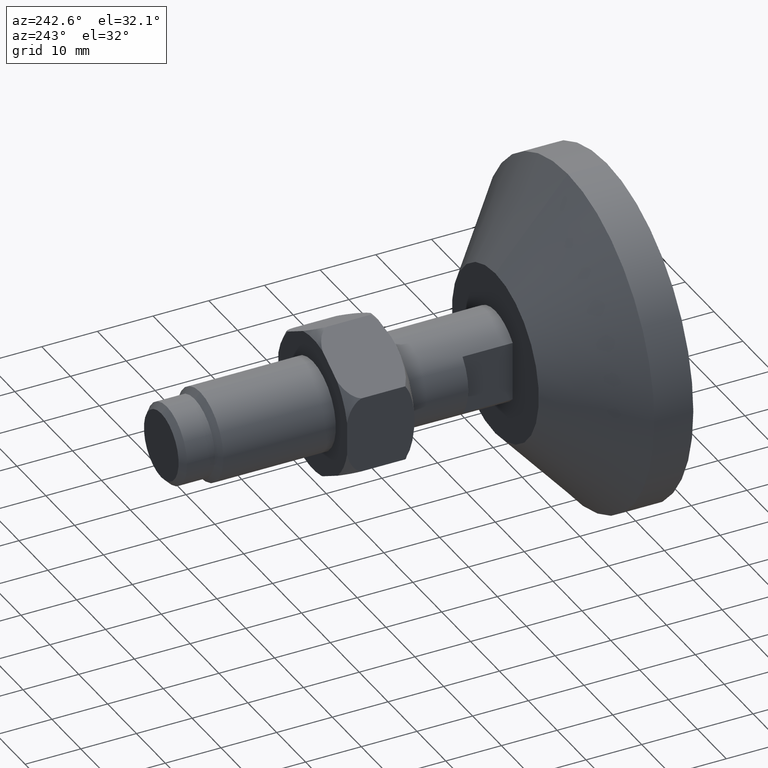
[diagram: clean part render]
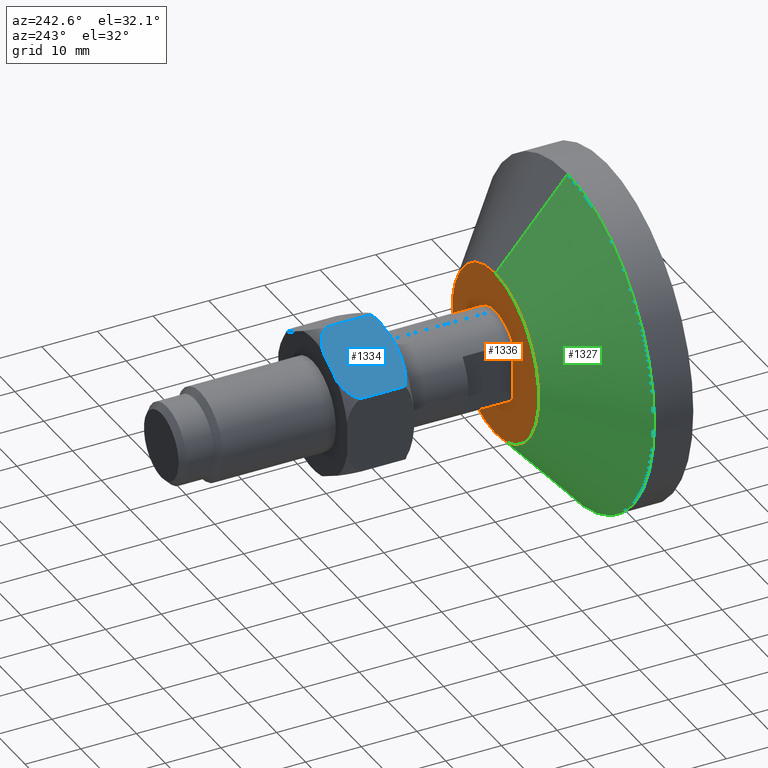
[diagram: same view with three faces highlighted in distinct colors, each labeled with its STEP entity id]
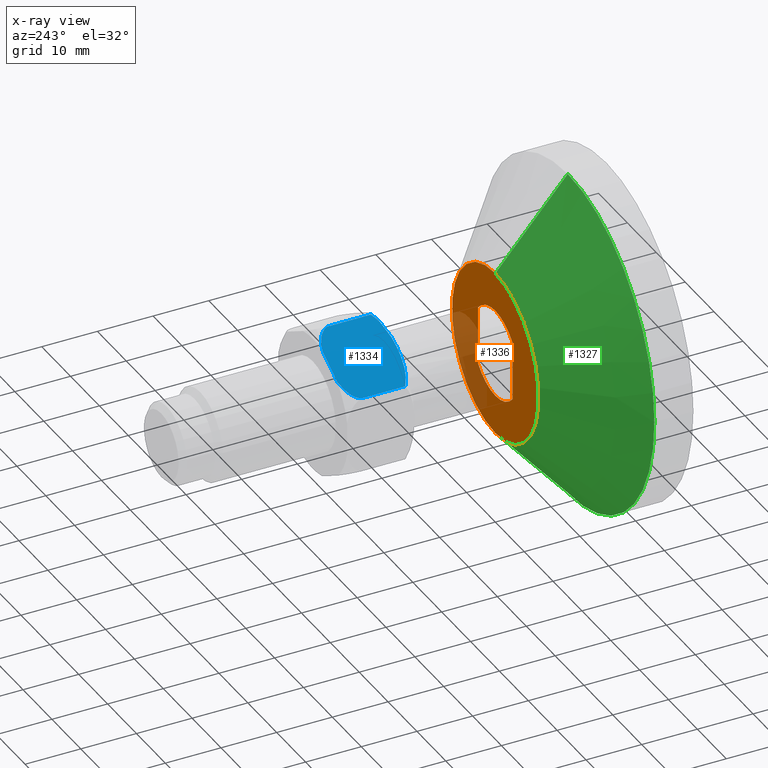
[diagram: x-ray of the same camera — body ghosted, the three highlighted faces saturated]
A machine part, auxiliary view with three faces highlighted in distinct colors.
The next image is the same camera in x-ray (body ghosted, the three faces saturated) — at least one of them is partly hidden behind the body in this view.
Their STEP definitions:

[orange] entity #1336 — the highlighted planar face has unit normal (0, 1, 0).
#22 = EDGE_CURVE ( 'NONE', #1129, #1158, #1452, .T. ) ;
#24 = EDGE_CURVE ( 'NONE', #1131, #1130, #1436, .T. ) ;
#37 = EDGE_CURVE ( 'NONE', #1158, #1160, #1526, .T. ) ;
#39 = EDGE_CURVE ( 'NONE', #1143, #1128, #825, .T. ) ;
#40 = EDGE_CURVE ( 'NONE', #1127, #1128, #58, .T. ) ;
#44 = EDGE_CURVE ( 'NONE', #1160, #1127, #501, .T. ) ;
#58 = CIRCLE ( 'NONE', #682, 8.000000000000000000 ) ;
#67 = ORIENTED_EDGE ( 'NONE', *, *, #44, .F. ) ;
#73 = ORIENTED_EDGE ( 'NONE', *, *, #1021, .F. ) ;
#74 = ORIENTED_EDGE ( 'NONE', *, *, #24, .T. ) ;
#77 = ORIENTED_EDGE ( 'NONE', *, *, #40, .F. ) ;
#92 = ORIENTED_EDGE ( 'NONE', *, *, #39, .T. ) ;
#96 = ORIENTED_EDGE ( 'NONE', *, *, #1465, .T. ) ;
#105 = ORIENTED_EDGE ( 'NONE', *, *, #22, .F. ) ;
#110 = ORIENTED_EDGE ( 'NONE', *, *, #37, .F. ) ;
#260 = PLANE ( 'NONE',  #1480 ) ;
#261 = CARTESIAN_POINT ( 'NONE',  ( 0.0000000000000000000, 20.00000000000000000, 0.0000000000000000000 ) ) ;
#262 = DIRECTION ( 'NONE',  ( 0.0000000000000000000, 1.000000000000000000, 0.0000000000000000000 ) ) ;
#263 = DIRECTION ( 'NONE',  ( 0.0000000000000000000, -0.0000000000000000000, 1.000000000000000000 ) ) ;
#501 = CIRCLE ( 'NONE', #726, 8.000000000000000000 ) ;
#573 = CIRCLE ( 'NONE', #673, 8.000000000000000000 ) ;
#600 = FACE_BOUND ( 'NONE', #1445, .T. ) ;
#601 = FACE_OUTER_BOUND ( 'NONE', #1434, .T. ) ;
#629 = CIRCLE ( 'NONE', #1493, 15.04521070612684500 ) ;
#673 = AXIS2_PLACEMENT_3D ( 'NONE', #1419, #1420, #1421 ) ;
#676 = AXIS2_PLACEMENT_3D ( 'NONE', #1207, #1208, #1209 ) ;
#679 = AXIS2_PLACEMENT_3D ( 'NONE', #1202, #1203, #1204 ) ;
#682 = AXIS2_PLACEMENT_3D ( 'NONE', #1267, #1270, #1275 ) ;
#726 = AXIS2_PLACEMENT_3D ( 'NONE', #838, #836, #827 ) ;
#825 = LINE ( 'NONE', #1274, #841 ) ;
#827 = DIRECTION ( 'NONE',  ( 0.0000000000000000000, 0.0000000000000000000, 1.000000000000000000 ) ) ;
#836 = DIRECTION ( 'NONE',  ( 0.0000000000000000000, 1.000000000000000000, 0.0000000000000000000 ) ) ;
#838 = CARTESIAN_POINT ( 'NONE',  ( 0.0000000000000000000, 20.00000000000000000, 0.0000000000000000000 ) ) ;
#841 = VECTOR ( 'NONE', #1283, 1000.000000000000000 ) ;
#975 = CARTESIAN_POINT ( 'NONE',  ( 9.797174393178825700E-016, 20.00000000000000000, 8.000000000000000000 ) ) ;
#976 = CARTESIAN_POINT ( 'NONE',  ( 6.000000000000000000, 20.00000000000000000, 5.291502622129181400 ) ) ;
#977 = CARTESIAN_POINT ( 'NONE',  ( 0.0000000000000000000, 20.00000000000000000, -8.000000000000000000 ) ) ;
#978 = CARTESIAN_POINT ( 'NONE',  ( -2.758223655408815900E-015, 20.00000000000000000, -15.04521070612684500 ) ) ;
#979 = CARTESIAN_POINT ( 'NONE',  ( 0.0000000000000000000, 20.00000000000000000, 15.04521070612684500 ) ) ;
#991 = CARTESIAN_POINT ( 'NONE',  ( 6.000000000000000000, 20.00000000000000000, -5.291502622129181400 ) ) ;
#1006 = CARTESIAN_POINT ( 'NONE',  ( -6.000000000000001800, 20.00000000000000000, -5.291502622129178800 ) ) ;
#1008 = CARTESIAN_POINT ( 'NONE',  ( -6.000000000000001800, 20.00000000000000400, 5.291502622129178800 ) ) ;
#1021 = EDGE_CURVE ( 'NONE', #1143, #1129, #573, .T. ) ;
#1072 = CARTESIAN_POINT ( 'NONE',  ( 0.0000000000000000000, 20.00000000000000000, 0.0000000000000000000 ) ) ;
#1073 = DIRECTION ( 'NONE',  ( 0.0000000000000000000, 1.000000000000000000, 0.0000000000000000000 ) ) ;
#1074 = DIRECTION ( 'NONE',  ( 0.0000000000000000000, 0.0000000000000000000, 1.000000000000000000 ) ) ;
#1127 = VERTEX_POINT ( 'NONE', #975 ) ;
#1128 = VERTEX_POINT ( 'NONE', #976 ) ;
#1129 = VERTEX_POINT ( 'NONE', #977 ) ;
#1130 = VERTEX_POINT ( 'NONE', #978 ) ;
#1131 = VERTEX_POINT ( 'NONE', #979 ) ;
#1143 = VERTEX_POINT ( 'NONE', #991 ) ;
#1158 = VERTEX_POINT ( 'NONE', #1006 ) ;
#1160 = VERTEX_POINT ( 'NONE', #1008 ) ;
#1202 = CARTESIAN_POINT ( 'NONE',  ( 0.0000000000000000000, 20.00000000000000000, 0.0000000000000000000 ) ) ;
#1203 = DIRECTION ( 'NONE',  ( 0.0000000000000000000, 1.000000000000000000, 0.0000000000000000000 ) ) ;
#1204 = DIRECTION ( 'NONE',  ( 0.0000000000000000000, 0.0000000000000000000, 1.000000000000000000 ) ) ;
#1207 = CARTESIAN_POINT ( 'NONE',  ( 0.0000000000000000000, 20.00000000000000000, 0.0000000000000000000 ) ) ;
#1208 = DIRECTION ( 'NONE',  ( 0.0000000000000000000, 1.000000000000000000, 0.0000000000000000000 ) ) ;
#1209 = DIRECTION ( 'NONE',  ( 0.0000000000000000000, 0.0000000000000000000, 1.000000000000000000 ) ) ;
#1267 = CARTESIAN_POINT ( 'NONE',  ( 0.0000000000000000000, 20.00000000000000000, 0.0000000000000000000 ) ) ;
#1270 = DIRECTION ( 'NONE',  ( 0.0000000000000000000, 1.000000000000000000, 0.0000000000000000000 ) ) ;
#1274 = CARTESIAN_POINT ( 'NONE',  ( 6.000000000000000000, 20.00000000000000000, -15.00000000000000000 ) ) ;
#1275 = DIRECTION ( 'NONE',  ( 0.0000000000000000000, 0.0000000000000000000, 1.000000000000000000 ) ) ;
#1278 = DIRECTION ( 'NONE',  ( -0.0000000000000000000, -0.0000000000000000000, 1.000000000000000000 ) ) ;
#1280 = CARTESIAN_POINT ( 'NONE',  ( -6.000000000000001800, 20.00000000000000000, -15.00000000000000000 ) ) ;
#1283 = DIRECTION ( 'NONE',  ( -0.0000000000000000000, -0.0000000000000000000, 1.000000000000000000 ) ) ;
#1336 = ADVANCED_FACE ( 'NONE', ( #600, #601 ), #260, .T. ) ;
#1419 = CARTESIAN_POINT ( 'NONE',  ( 0.0000000000000000000, 20.00000000000000000, 0.0000000000000000000 ) ) ;
#1420 = DIRECTION ( 'NONE',  ( 0.0000000000000000000, 1.000000000000000000, 0.0000000000000000000 ) ) ;
#1421 = DIRECTION ( 'NONE',  ( 0.0000000000000000000, 0.0000000000000000000, 1.000000000000000000 ) ) ;
#1434 = EDGE_LOOP ( 'NONE', ( #74, #96 ) ) ;
#1436 = CIRCLE ( 'NONE', #676, 15.04521070612684500 ) ;
#1445 = EDGE_LOOP ( 'NONE', ( #73, #92, #77, #67, #110, #105 ) ) ;
#1452 = CIRCLE ( 'NONE', #679, 8.000000000000000000 ) ;
#1465 = EDGE_CURVE ( 'NONE', #1130, #1131, #629, .T. ) ;
#1480 = AXIS2_PLACEMENT_3D ( 'NONE', #261, #262, #263 ) ;
#1493 = AXIS2_PLACEMENT_3D ( 'NONE', #1072, #1073, #1074 ) ;
#1513 = VECTOR ( 'NONE', #1278, 1000.000000000000000 ) ;
#1526 = LINE ( 'NONE', #1280, #1513 ) ;

[blue] entity #1334 — the highlighted planar face has unit normal (0.5, 0, -0.866).
#16 = EDGE_CURVE ( 'NONE', #1116, #1107, #1446, .T. ) ;
#17 = EDGE_CURVE ( 'NONE', #1114, #1107, #874, .T. ) ;
#18 = EDGE_CURVE ( 'NONE', #1114, #1111, #1440, .T. ) ;
#123 = CARTESIAN_POINT ( 'NONE',  ( -6.471409395423457900, 40.70385899300910600, 10.00466645022909900 ) ) ;
#252 = PLANE ( 'NONE',  #1478 ) ;
#253 = CARTESIAN_POINT ( 'NONE',  ( -11.89999999999999700, 52.79999999999999700, 6.870468203356557200 ) ) ;
#254 = DIRECTION ( 'NONE',  ( 0.5000000000000003300, 0.0000000000000000000, -0.8660254037844386000 ) ) ;
#255 = DIRECTION ( 'NONE',  ( -0.8660254037844384900, 0.0000000000000000000, -0.5000000000000002200 ) ) ;
#311 = CARTESIAN_POINT ( 'NONE',  ( -11.89999999999999700, 42.35453000970881700, 6.870468203356557200 ) ) ;
#312 = CARTESIAN_POINT ( 'NONE',  ( -11.47033084900914600, 42.00570290842164000, 7.118537803343609300 ) ) ;
#319 = CARTESIAN_POINT ( 'NONE',  ( -4.916127402294508300, 40.72819692485708000, 10.90260892762787600 ) ) ;
#320 = CARTESIAN_POINT ( 'NONE',  ( -3.887471983805165500, 40.83308087438815200, 11.49650341039605900 ) ) ;
#321 = CARTESIAN_POINT ( 'NONE',  ( -3.376772570704735400, 40.91328509604832700, 11.79135585402458900 ) ) ;
#322 = CARTESIAN_POINT ( 'NONE',  ( -2.618322954043055300, 41.09173973558649400, 12.22924694437097400 ) ) ;
#323 = CARTESIAN_POINT ( 'NONE',  ( -2.366788724979581400, 41.16103632883942300, 12.37447029923117500 ) ) ;
#324 = CARTESIAN_POINT ( 'NONE',  ( -1.866900773211252600, 41.32396545686370400, 12.66308074274927400 ) ) ;
#325 = CARTESIAN_POINT ( 'NONE',  ( -1.618035863816474700, 41.41794225307423700, 12.80676296518019600 ) ) ;
#326 = CARTESIAN_POINT ( 'NONE',  ( -0.8913737469897219400, 41.73957701619501400, 13.22630153394002200 ) ) ;
#327 = CARTESIAN_POINT ( 'NONE',  ( -0.4287694987852925200, 42.00643329148568500, 13.49338622116911200 ) ) ;
#328 = CARTESIAN_POINT ( 'NONE',  ( -6.047775764469060100E-015, 42.35453000970881000, 13.74093640671310000 ) ) ;
#331 = CARTESIAN_POINT ( 'NONE',  ( -11.89999999999999700, 52.79999999999999700, 6.870468203356557200 ) ) ;
#332 = DIRECTION ( 'NONE',  ( -0.0000000000000000000, -1.000000000000000000, -0.0000000000000000000 ) ) ;
#377 = CARTESIAN_POINT ( 'NONE',  ( -8.540620882409705000, 52.79999999999999700, 8.810006641207328600 ) ) ;
#378 = CARTESIAN_POINT ( 'NONE',  ( -8.882436639350880000, 52.71647872135522300, 8.612659221924079800 ) ) ;
#379 = CARTESIAN_POINT ( 'NONE',  ( -9.218031119203290700, 52.61211934173839900, 8.418903658642735300 ) ) ;
#380 = CARTESIAN_POINT ( 'NONE',  ( -9.708700194035424500, 52.41296590933853800, 8.135615736205380700 ) ) ;
#381 = CARTESIAN_POINT ( 'NONE',  ( -9.870118723610987700, 52.33942079753369100, 8.042420704702738700 ) ) ;
#382 = CARTESIAN_POINT ( 'NONE',  ( -10.18776195449198200, 52.17493390176487400, 7.859029299847335900 ) ) ;
#383 = CARTESIAN_POINT ( 'NONE',  ( -10.34475254403405100, 52.08347175356780000, 7.768390740714980100 ) ) ;
#384 = CARTESIAN_POINT ( 'NONE',  ( -10.64743549393479300, 51.88192805968030500, 7.593636658110674500 ) ) ;
#385 = CARTESIAN_POINT ( 'NONE',  ( -10.79322358349715400, 51.77195194879805500, 7.509465865357205100 ) ) ;
#386 = CARTESIAN_POINT ( 'NONE',  ( -11.07135099307152800, 51.52970953538640200, 7.348888930570425700 ) ) ;
#387 = CARTESIAN_POINT ( 'NONE',  ( -11.20466882107739300, 51.39630131554728400, 7.271917846683462200 ) ) ;
#388 = CARTESIAN_POINT ( 'NONE',  ( -11.44880241081039600, 51.10741893476112100, 7.130967252932887100 ) ) ;
#389 = CARTESIAN_POINT ( 'NONE',  ( -11.55946446730966500, 50.95256537290995200, 7.067076484823954500 ) ) ;
#390 = CARTESIAN_POINT ( 'NONE',  ( -11.75332038905646900, 50.61778016311884400, 6.955153716219431500 ) ) ;
#391 = CARTESIAN_POINT ( 'NONE',  ( -11.83662220062920800, 50.43679063166502600, 6.907059392883925700 ) ) ;
#392 = CARTESIAN_POINT ( 'NONE',  ( -11.89999999999999300, 50.24676193515615100, 6.870468203356561600 ) ) ;
#520 = LINE ( 'NONE', #331, #521 ) ;
#521 = VECTOR ( 'NONE', #332, 1000.000000000000000 ) ;
#597 = FACE_OUTER_BOUND ( 'NONE', #689, .T. ) ;
#669 = CARTESIAN_POINT ( 'NONE',  ( -10.04424930671583900, 41.31253187079018100, 7.941886365673001400 ) ) ;
#670 = CARTESIAN_POINT ( 'NONE',  ( -11.00851914028844700, 41.73972367200169500, 7.385164917688424400 ) ) ;
#674 = CARTESIAN_POINT ( 'NONE',  ( -6.986954617257921100, 40.72844365769901700, 9.707016277623491600 ) ) ;
#689 = EDGE_LOOP ( 'NONE', ( #1318, #1317, #1322, #1314, #1319, #1301 ) ) ;
#822 = CARTESIAN_POINT ( 'NONE',  ( -9.537781358528889100, 41.15209842145743800, 8.234295771894650800 ) ) ;
#824 = CARTESIAN_POINT ( 'NONE',  ( -8.523653860106216800, 40.91328556682851300, 8.819802556101581800 ) ) ;
#849 = EDGE_CURVE ( 'NONE', #1110, #1111, #881, .T. ) ;
#851 = EDGE_CURVE ( 'NONE', #1109, #1110, #520, .T. ) ;
#858 = EDGE_CURVE ( 'NONE', #1116, #1109, #884, .T. ) ;
#874 = B_SPLINE_CURVE_WITH_KNOTS ( 'NONE', 3,
 ( #1163, #1164, #1165, #1166, #1167, #1168, #1169, #1170, #1171, #1172, #1173, #1174 ),
 .UNSPECIFIED., .F., .F.,
 ( 4, 2, 2, 2, 2, 4 ),
 ( 2.354805997522815600E-017, 0.0006028800655106791000, 0.001205760131021334800, 0.002411520262042645700, 0.003617280393063956900, 0.004823040524085268000 ),
 .UNSPECIFIED. ) ;
#881 = B_SPLINE_CURVE_WITH_KNOTS ( 'NONE', 3,
 ( #311, #312, #670, #669, #822, #824, #1031, #674, #123, #898, #319, #320, #321, #322, #323, #324, #325, #326, #327, #328 ),
 .UNSPECIFIED., .F., .F.,
 ( 4, 2, 2, 2, 2, 2, 2, 2, 2, 4 ),
 ( 0.0000000000000000000, 0.001786181906175428300, 0.003572363812350857900, 0.005358545718526288100, 0.007144727624701717500, 0.008930909530877146800, 0.01071709143705257800, 0.01161018239014029200, 0.01250327334322800900, 0.01428945524940343800 ),
 .UNSPECIFIED. ) ;
#884 = B_SPLINE_CURVE_WITH_KNOTS ( 'NONE', 3,
 ( #377, #378, #379, #380, #381, #382, #383, #384, #385, #386, #387, #388, #389, #390, #391, #392 ),
 .UNSPECIFIED., .F., .F.,
 ( 4, 2, 2, 2, 2, 2, 2, 4 ),
 ( 8.673617379884035500E-018, 0.001201094750445977900, 0.001801642125668963500, 0.002402189500891949300, 0.003002736876114934700, 0.003603284251337920500, 0.004203831626560905500, 0.004804379001783891700 ),
 .UNSPECIFIED. ) ;
#898 = CARTESIAN_POINT ( 'NONE',  ( -5.435942201204801100, 40.70362116646295200, 10.60249371354827000 ) ) ;
#955 = CARTESIAN_POINT ( 'NONE',  ( -3.359379117590317200, 52.79999999999999700, 11.80139796886233600 ) ) ;
#957 = CARTESIAN_POINT ( 'NONE',  ( -11.89999999999999300, 50.24676193515615100, 6.870468203356561600 ) ) ;
#958 = CARTESIAN_POINT ( 'NONE',  ( -11.89999999999999700, 42.35453000970881700, 6.870468203356557200 ) ) ;
#959 = CARTESIAN_POINT ( 'NONE',  ( -6.047775764469060100E-015, 42.35453000970881000, 13.74093640671310000 ) ) ;
#962 = CARTESIAN_POINT ( 'NONE',  ( -4.443965581537938300E-015, 50.24676193515611500, 13.74093640671310400 ) ) ;
#964 = CARTESIAN_POINT ( 'NONE',  ( -8.540620882409705000, 52.79999999999999700, 8.810006641207328600 ) ) ;
#1031 = CARTESIAN_POINT ( 'NONE',  ( -8.013072626379598200, 40.83320415965661700, 9.114586768836773000 ) ) ;
#1107 = VERTEX_POINT ( 'NONE', #955 ) ;
#1109 = VERTEX_POINT ( 'NONE', #957 ) ;
#1110 = VERTEX_POINT ( 'NONE', #958 ) ;
#1111 = VERTEX_POINT ( 'NONE', #959 ) ;
#1114 = VERTEX_POINT ( 'NONE', #962 ) ;
#1116 = VERTEX_POINT ( 'NONE', #964 ) ;
#1161 = CARTESIAN_POINT ( 'NONE',  ( -11.89999999999999700, 52.79999999999999700, 6.870468203356557200 ) ) ;
#1162 = DIRECTION ( 'NONE',  ( 0.8660254037844384900, 0.0000000000000000000, 0.5000000000000002200 ) ) ;
#1163 = CARTESIAN_POINT ( 'NONE',  ( -4.443965581537938300E-015, 50.24676193515611500, 13.74093640671310400 ) ) ;
#1164 = CARTESIAN_POINT ( 'NONE',  ( -0.06359257024216148600, 50.43743458947258800, 13.70422121916533200 ) ) ;
#1165 = CARTESIAN_POINT ( 'NONE',  ( -0.1454209478348545400, 50.61521734069539500, 13.65697758333484100 ) ) ;
#1166 = CARTESIAN_POINT ( 'NONE',  ( -0.3387271118221025800, 50.94982528426258700, 13.54537221752078600 ) ) ;
#1167 = CARTESIAN_POINT ( 'NONE',  ( -0.4515784775512165000, 51.10793985541741300, 13.48021745113867600 ) ) ;
#1168 = CARTESIAN_POINT ( 'NONE',  ( -0.8182362359179236000, 51.54159352402065500, 13.26852749564518800 ) ) ;
#1169 = CARTESIAN_POINT ( 'NONE',  ( -1.100054923503042800, 51.78037656030883100, 13.10581940050524400 ) ) ;
#1170 = CARTESIAN_POINT ( 'NONE',  ( -1.707724687314361700, 52.18500171154394700, 12.75498109879038300 ) ) ;
#1171 = CARTESIAN_POINT ( 'NONE',  ( -2.025565010116754800, 52.34555303006536100, 12.57147590286111700 ) ) ;
#1172 = CARTESIAN_POINT ( 'NONE',  ( -2.679784725270799100, 52.61137609001536900, 12.19376197420776700 ) ) ;
#1173 = CARTESIAN_POINT ( 'NONE',  ( -3.017200356088422200, 52.71639002267954100, 11.99895496892586900 ) ) ;
#1174 = CARTESIAN_POINT ( 'NONE',  ( -3.359379117590317200, 52.79999999999999700, 11.80139796886233600 ) ) ;
#1175 = CARTESIAN_POINT ( 'NONE',  ( -4.443965581537938300E-015, 52.79999999999999700, 13.74093640671310400 ) ) ;
#1176 = DIRECTION ( 'NONE',  ( -0.0000000000000000000, -1.000000000000000000, -0.0000000000000000000 ) ) ;
#1301 = ORIENTED_EDGE ( 'NONE', *, *, #858, .T. ) ;
#1314 = ORIENTED_EDGE ( 'NONE', *, *, #17, .T. ) ;
#1317 = ORIENTED_EDGE ( 'NONE', *, *, #849, .T. ) ;
#1318 = ORIENTED_EDGE ( 'NONE', *, *, #851, .T. ) ;
#1319 = ORIENTED_EDGE ( 'NONE', *, *, #16, .F. ) ;
#1322 = ORIENTED_EDGE ( 'NONE', *, *, #18, .F. ) ;
#1334 = ADVANCED_FACE ( 'NONE', ( #597 ), #252, .F. ) ;
#1433 = VECTOR ( 'NONE', #1176, 1000.000000000000000 ) ;
#1440 = LINE ( 'NONE', #1175, #1433 ) ;
#1446 = LINE ( 'NONE', #1161, #1456 ) ;
#1456 = VECTOR ( 'NONE', #1162, 1000.000000000000200 ) ;
#1478 = AXIS2_PLACEMENT_3D ( 'NONE', #253, #254, #255 ) ;

[green] entity #1327 — the highlighted conical surface has half-angle 49 deg.
#64 = ORIENTED_EDGE ( 'NONE', *, *, #1460, .T. ) ;
#65 = ORIENTED_EDGE ( 'NONE', *, *, #1463, .T. ) ;
#90 = ORIENTED_EDGE ( 'NONE', *, *, #1465, .F. ) ;
#94 = ORIENTED_EDGE ( 'NONE', *, *, #1017, .F. ) ;
#229 = CARTESIAN_POINT ( 'NONE',  ( 0.0000000000000000000, 7.000000000000000000, 0.0000000000000000000 ) ) ;
#230 = DIRECTION ( 'NONE',  ( -0.0000000000000000000, -1.000000000000000000, -0.0000000000000000000 ) ) ;
#231 = DIRECTION ( 'NONE',  ( 0.0000000000000000000, 0.0000000000000000000, 1.000000000000000000 ) ) ;
#568 = LINE ( 'NONE', #1411, #569 ) ;
#569 = VECTOR ( 'NONE', #1412, 1000.000000000000000 ) ;
#585 = FACE_OUTER_BOUND ( 'NONE', #711, .T. ) ;
#586 = CONICAL_SURFACE ( 'NONE', #1471, 30.00000000000000000, 0.8552113334772223400 ) ;
#621 = LINE ( 'NONE', #1060, #622 ) ;
#622 = VECTOR ( 'NONE', #1061, 1000.000000000000000 ) ;
#627 = CIRCLE ( 'NONE', #1492, 30.00000000000000000 ) ;
#629 = CIRCLE ( 'NONE', #1493, 15.04521070612684500 ) ;
#711 = EDGE_LOOP ( 'NONE', ( #90, #64, #65, #94 ) ) ;
#974 = CARTESIAN_POINT ( 'NONE',  ( 0.0000000000000000000, 7.000000000000000000, -30.00000000000000000 ) ) ;
#978 = CARTESIAN_POINT ( 'NONE',  ( -2.758223655408815900E-015, 20.00000000000000000, -15.04521070612684500 ) ) ;
#979 = CARTESIAN_POINT ( 'NONE',  ( 0.0000000000000000000, 20.00000000000000000, 15.04521070612684500 ) ) ;
#992 = CARTESIAN_POINT ( 'NONE',  ( 3.673940397442059200E-015, 7.000000000000000000, 30.00000000000000000 ) ) ;
#1017 = EDGE_CURVE ( 'NONE', #1131, #1144, #568, .T. ) ;
#1060 = CARTESIAN_POINT ( 'NONE',  ( -3.673940397442059200E-015, 7.000000000000000000, -30.00000000000000000 ) ) ;
#1061 = DIRECTION ( 'NONE',  ( -9.242526717056609700E-017, -0.6560590289905066100, -0.7547095802227725700 ) ) ;
#1067 = CARTESIAN_POINT ( 'NONE',  ( 0.0000000000000000000, 7.000000000000000000, 0.0000000000000000000 ) ) ;
#1068 = DIRECTION ( 'NONE',  ( 0.0000000000000000000, 1.000000000000000000, 0.0000000000000000000 ) ) ;
#1069 = DIRECTION ( 'NONE',  ( 0.0000000000000000000, 0.0000000000000000000, 1.000000000000000000 ) ) ;
#1072 = CARTESIAN_POINT ( 'NONE',  ( 0.0000000000000000000, 20.00000000000000000, 0.0000000000000000000 ) ) ;
#1073 = DIRECTION ( 'NONE',  ( 0.0000000000000000000, 1.000000000000000000, 0.0000000000000000000 ) ) ;
#1074 = DIRECTION ( 'NONE',  ( 0.0000000000000000000, 0.0000000000000000000, 1.000000000000000000 ) ) ;
#1126 = VERTEX_POINT ( 'NONE', #974 ) ;
#1130 = VERTEX_POINT ( 'NONE', #978 ) ;
#1131 = VERTEX_POINT ( 'NONE', #979 ) ;
#1144 = VERTEX_POINT ( 'NONE', #992 ) ;
#1327 = ADVANCED_FACE ( 'NONE', ( #585 ), #586, .T. ) ;
#1411 = CARTESIAN_POINT ( 'NONE',  ( 0.0000000000000000000, 7.000000000000000000, 30.00000000000000000 ) ) ;
#1412 = DIRECTION ( 'NONE',  ( 0.0000000000000000000, -0.6560590289905066100, 0.7547095802227725700 ) ) ;
#1460 = EDGE_CURVE ( 'NONE', #1130, #1126, #621, .T. ) ;
#1463 = EDGE_CURVE ( 'NONE', #1126, #1144, #627, .T. ) ;
#1465 = EDGE_CURVE ( 'NONE', #1130, #1131, #629, .T. ) ;
#1471 = AXIS2_PLACEMENT_3D ( 'NONE', #229, #230, #231 ) ;
#1492 = AXIS2_PLACEMENT_3D ( 'NONE', #1067, #1068, #1069 ) ;
#1493 = AXIS2_PLACEMENT_3D ( 'NONE', #1072, #1073, #1074 ) ;